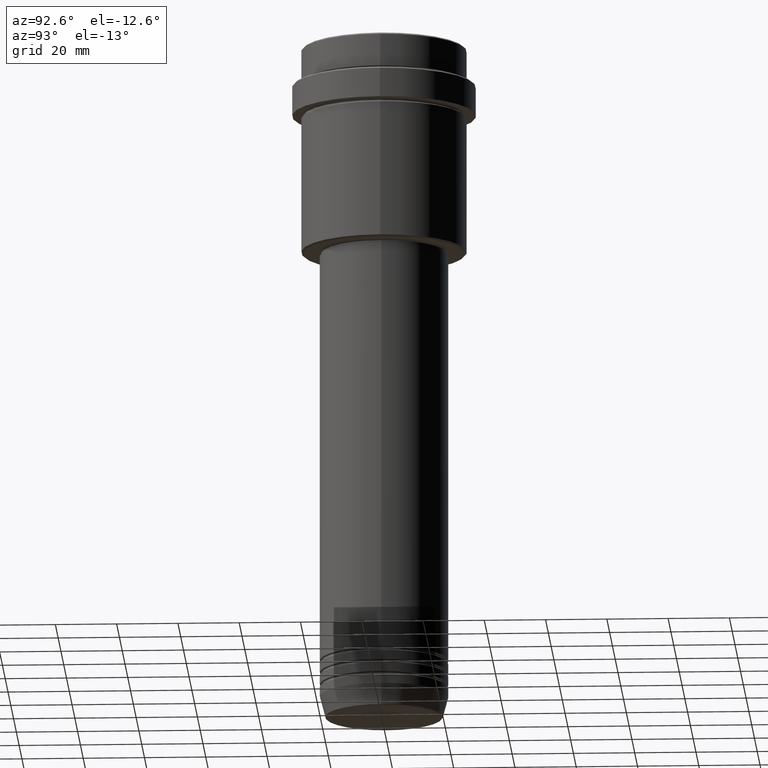
[diagram: clean part render]
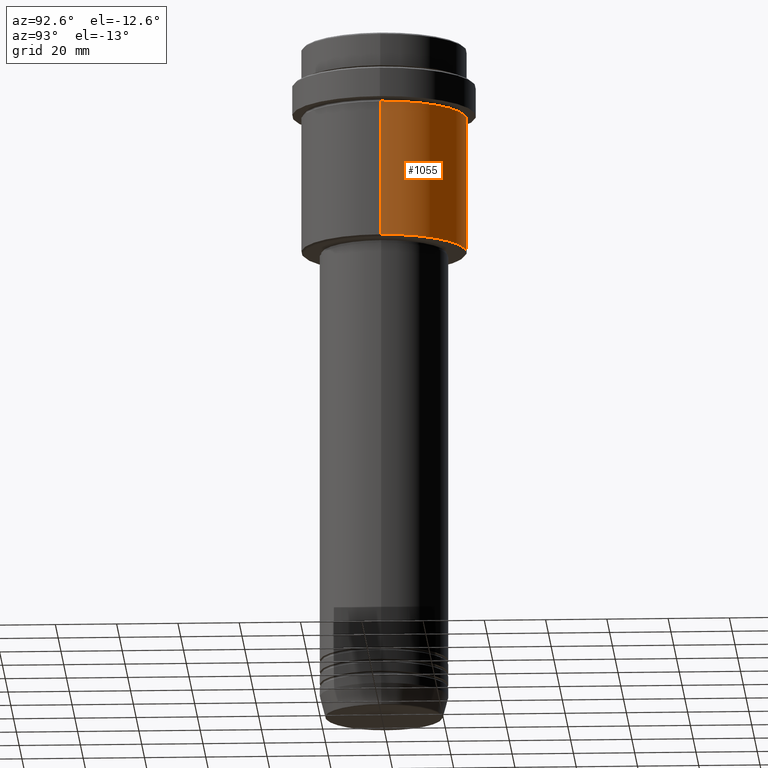
[diagram: same view with one face highlighted and labeled with its STEP entity id]
A machine part, auxiliary view. The second image highlights one B-rep face of the part: STEP entity #1055.
In plain terms, the highlighted cylindrical surface (partial cylindrical patch) has radius 27 mm, axis along (-0, -0, 1).
Its self-contained STEP definition (entity closure, byte-faithful):
#28 = DIRECTION ( 'NONE',  ( -1.000000000000000000, 0.000000000000000000, 0.000000000000000000 ) ) ;
#47 = LINE ( 'NONE', #813, #948 ) ;
#69 = CARTESIAN_POINT ( 'NONE',  ( 26.99999999999999645, 0.000000000000000000, -23.00000000000000000 ) ) ;
#77 = AXIS2_PLACEMENT_3D ( 'NONE', #631, #1283, #1063 ) ;
#110 = DIRECTION ( 'NONE',  ( -0.000000000000000000, -0.000000000000000000, 1.000000000000000000 ) ) ;
#160 = ORIENTED_EDGE ( 'NONE', *, *, #746, .F. ) ;
#227 = ORIENTED_EDGE ( 'NONE', *, *, #524, .F. ) ;
#248 = CARTESIAN_POINT ( 'NONE',  ( 0.000000000000000000, 0.000000000000000000, -23.00000000000000000 ) ) ;
#470 = DIRECTION ( 'NONE',  ( -0.000000000000000000, -0.000000000000000000, 1.000000000000000000 ) ) ;
#485 = DIRECTION ( 'NONE',  ( -0.000000000000000000, -0.000000000000000000, 1.000000000000000000 ) ) ;
#507 = VERTEX_POINT ( 'NONE', #1409 ) ;
#524 = EDGE_CURVE ( 'NONE', #507, #861, #793, .T. ) ;
#558 = CIRCLE ( 'NONE', #1037, 26.99999999999999645 ) ;
#588 = CARTESIAN_POINT ( 'NONE',  ( 0.000000000000000000, 0.000000000000000000, -67.49999999999998579 ) ) ;
#605 = VERTEX_POINT ( 'NONE', #775 ) ;
#631 = CARTESIAN_POINT ( 'NONE',  ( 0.000000000000000000, 0.000000000000000000, 0.000000000000000000 ) ) ;
#639 = EDGE_CURVE ( 'NONE', #507, #605, #558, .T. ) ;
#696 = ORIENTED_EDGE ( 'NONE', *, *, #639, .T. ) ;
#708 = EDGE_CURVE ( 'NONE', #605, #1116, #47, .T. ) ;
#746 = EDGE_CURVE ( 'NONE', #861, #1116, #809, .T. ) ;
#775 = CARTESIAN_POINT ( 'NONE',  ( -26.99999999999999645, 3.306546357697853339E-15, -67.49999999999998579 ) ) ;
#793 = LINE ( 'NONE', #1326, #1264 ) ;
#809 = CIRCLE ( 'NONE', #1289, 26.99999999999999645 ) ;
#813 = CARTESIAN_POINT ( 'NONE',  ( -26.99999999999999645, 3.306546357697853339E-15, 0.000000000000000000 ) ) ;
#840 = CARTESIAN_POINT ( 'NONE',  ( -26.99999999999999645, 3.306546357697853339E-15, -23.00000000000000000 ) ) ;
#861 = VERTEX_POINT ( 'NONE', #69 ) ;
#907 = ORIENTED_EDGE ( 'NONE', *, *, #708, .T. ) ;
#914 = DIRECTION ( 'NONE',  ( 1.000000000000000000, 0.000000000000000000, 0.000000000000000000 ) ) ;
#931 = CYLINDRICAL_SURFACE ( 'NONE', #77, 26.99999999999999645 ) ;
#948 = VECTOR ( 'NONE', #470, 1000.000000000000000 ) ;
#1037 = AXIS2_PLACEMENT_3D ( 'NONE', #588, #485, #28 ) ;
#1055 = ADVANCED_FACE ( 'NONE', ( #1263 ), #931, .T. ) ;
#1063 = DIRECTION ( 'NONE',  ( 1.000000000000000000, 0.000000000000000000, 0.000000000000000000 ) ) ;
#1116 = VERTEX_POINT ( 'NONE', #840 ) ;
#1125 = DIRECTION ( 'NONE',  ( -0.000000000000000000, -0.000000000000000000, 1.000000000000000000 ) ) ;
#1263 = FACE_OUTER_BOUND ( 'NONE', #1417, .T. ) ;
#1264 = VECTOR ( 'NONE', #110, 1000.000000000000000 ) ;
#1283 = DIRECTION ( 'NONE',  ( -0.000000000000000000, -0.000000000000000000, 1.000000000000000000 ) ) ;
#1289 = AXIS2_PLACEMENT_3D ( 'NONE', #248, #1125, #914 ) ;
#1326 = CARTESIAN_POINT ( 'NONE',  ( 26.99999999999999645, 0.000000000000000000, 0.000000000000000000 ) ) ;
#1409 = CARTESIAN_POINT ( 'NONE',  ( 26.99999999999999645, 0.000000000000000000, -67.49999999999998579 ) ) ;
#1417 = EDGE_LOOP ( 'NONE', ( #696, #907, #160, #227 ) ) ;